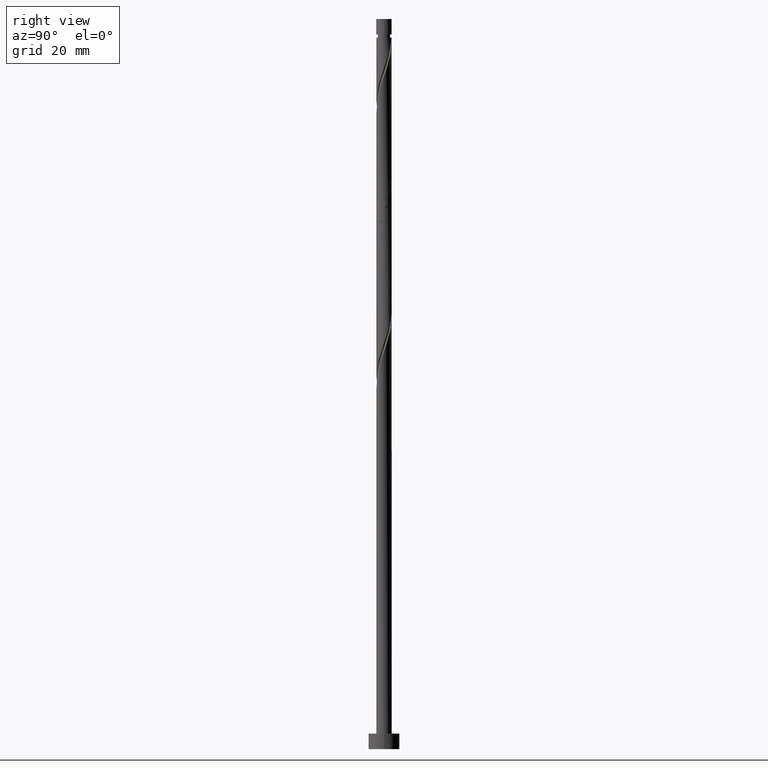
[diagram: clean part render]
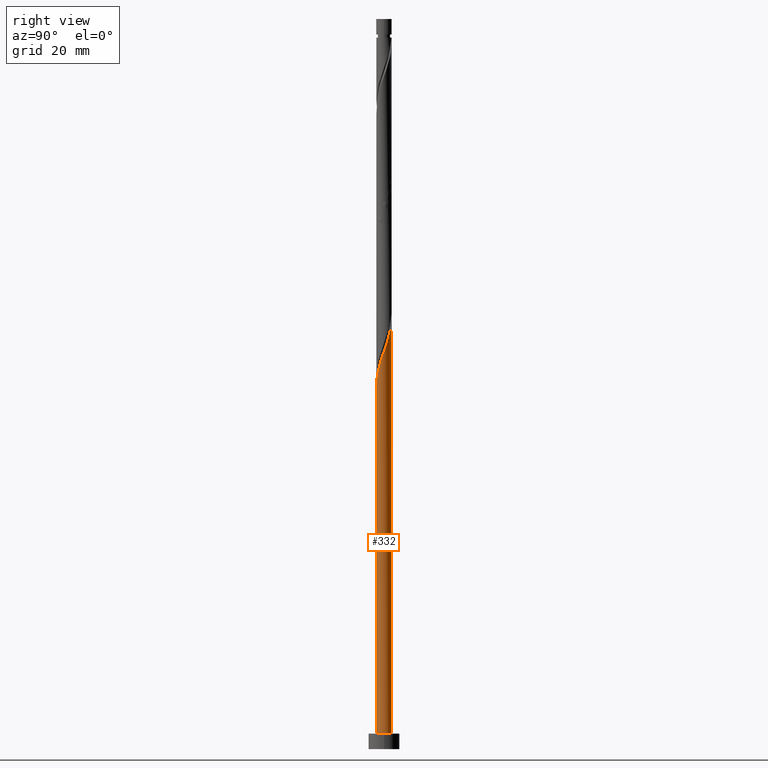
[diagram: same view with one face highlighted and labeled with its STEP entity id]
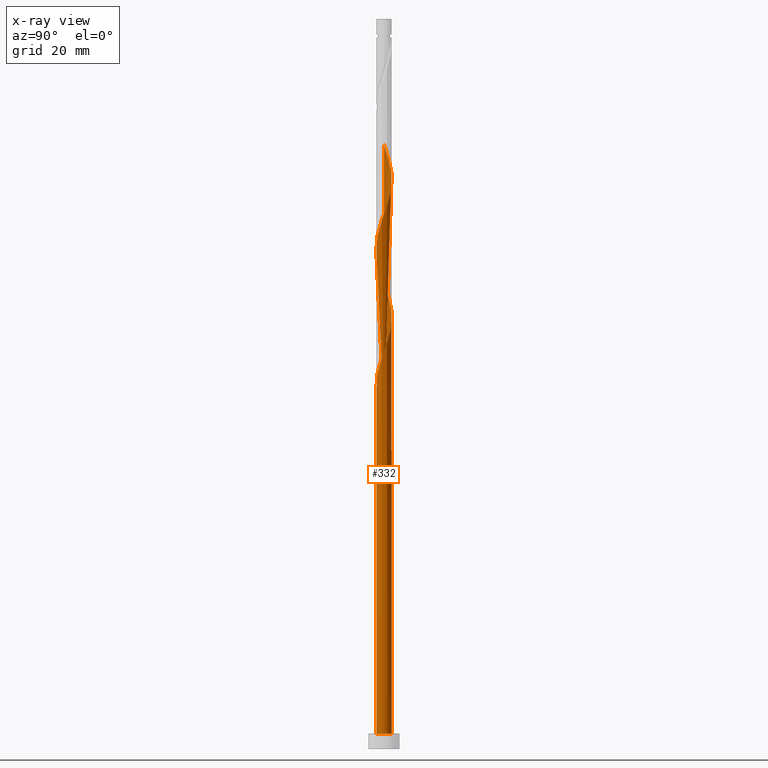
[diagram: x-ray of the same camera — body ghosted, the highlighted face saturated]
A machine part, right view. The second image highlights one B-rep face of the part: STEP entity #332.
The next image is the same camera in x-ray: the body ghosted, the highlighted face saturated — about 0% of this face is hidden behind the body in this view.
In plain terms, the highlighted cylindrical surface (bore or boss wall) has radius 1.5 mm, axis along (-0, -0, -1).
Its self-contained STEP definition (entity closure, byte-faithful):
#4 = EDGE_CURVE ( 'NONE', #1339, #1224, #66, .T. ) ;
#11 = DIRECTION ( 'NONE',  ( 0.000000000000000000, 0.000000000000000000, 1.000000000000000000 ) ) ;
#26 = CARTESIAN_POINT ( 'NONE',  ( 1.200452554620305756, -0.9248924852164317478, 74.17405152905163845 ) ) ;
#28 = VERTEX_POINT ( 'NONE', #1319 ) ;
#33 = ORIENTED_EDGE ( 'NONE', *, *, #1199, .F. ) ;
#36 = CARTESIAN_POINT ( 'NONE',  ( -0.1277418221353521788, -1.494550777617657866, 96.59829395329398949 ) ) ;
#58 = CARTESIAN_POINT ( 'NONE',  ( -0.08714213895937521215, 1.512917278876089178, 110.5376878926879840 ) ) ;
#62 = DIRECTION ( 'NONE',  ( 0.000000000000000000, -0.000000000000000000, -1.000000000000000000 ) ) ;
#63 = CARTESIAN_POINT ( 'NONE',  ( 1.412398115979206725, -0.5492212733340114950, 102.0528394078394854 ) ) ;
#66 = CIRCLE ( 'NONE', #115, 1.500000000000000222 ) ;
#77 = CARTESIAN_POINT ( 'NONE',  ( -1.412557076706237646, 0.5046607821568160901, 63.87102122602127707 ) ) ;
#84 = CARTESIAN_POINT ( 'NONE',  ( 0.1277418221353523453, 1.494550777617657866, 109.9316272866273039 ) ) ;
#91 = CARTESIAN_POINT ( 'NONE',  ( 1.497517962423706939, 0.08625515763335746267, 103.8710212260212842 ) ) ;
#93 = ORIENTED_EDGE ( 'NONE', *, *, #837, .T. ) ;
#95 = LINE ( 'NONE', #217, #1092 ) ;
#103 = CARTESIAN_POINT ( 'NONE',  ( -0.5436309926831534023, -1.398021939668450342, 95.38617274117278555 ) ) ;
#115 = AXIS2_PLACEMENT_3D ( 'NONE', #281, #11, #488 ) ;
#125 = CARTESIAN_POINT ( 'NONE',  ( -1.412557076706239423, -0.5046607821568164232, 91.74980910480913110 ) ) ;
#147 = EDGE_CURVE ( 'NONE', #28, #372, #844, .T. ) ;
#162 = EDGE_LOOP ( 'NONE', ( #33, #1200, #93, #785, #384, #1387, #276, #170, #1325 ) ) ;
#170 = ORIENTED_EDGE ( 'NONE', *, *, #510, .T. ) ;
#175 = CARTESIAN_POINT ( 'NONE',  ( -0.3426257832300798056, -1.476184276359228553, 95.99223334723343726 ) ) ;
#179 = CARTESIAN_POINT ( 'NONE',  ( -0.8912534666523074245, 1.225634408494021166, 112.9619303169304203 ) ) ;
#181 = CARTESIAN_POINT ( 'NONE',  ( -0.5098503233045978966, 1.427082721123916542, 85.08314243814253075 ) ) ;
#183 = CARTESIAN_POINT ( 'NONE',  ( -1.500000000000002665, 1.002106987134251127E-15, 116.9609606861143618 ) ) ;
#188 = CARTESIAN_POINT ( 'NONE',  ( -0.8912534666523074245, 1.225634408494021166, 86.29526365026373469 ) ) ;
#198 = CARTESIAN_POINT ( 'NONE',  ( -1.461158848907852192, 0.3391383467823815834, 89.32556668056673743 ) ) ;
#200 = CARTESIAN_POINT ( 'NONE',  ( -1.086320624467308482, -1.056607754070166605, 66.90132425632431534 ) ) ;
#209 = CARTESIAN_POINT ( 'NONE',  ( 1.500000000000000222, 0.000000000000000000, 3.000000000000000000 ) ) ;
#212 = CARTESIAN_POINT ( 'NONE',  ( -1.500000000000000222, 0.04316328978573460290, 65.20443830666455653 ) ) ;
#216 = CARTESIAN_POINT ( 'NONE',  ( 0.5098503233045974525, -1.427082721123916764, 71.74980910480915952 ) ) ;
#217 = CARTESIAN_POINT ( 'NONE',  ( -1.500000000000000222, 0.000000000000000000, 141.4300000000000068 ) ) ;
#225 = CARTESIAN_POINT ( 'NONE',  ( -0.7446362021362270545, -1.319859602977673241, 94.78011213511219069 ) ) ;
#242 = CARTESIAN_POINT ( 'NONE',  ( -1.200452554620305978, 0.9248924852164315258, 60.84071819571826722 ) ) ;
#243 = CARTESIAN_POINT ( 'NONE',  ( 0.000000000000000000, 0.000000000000000000, 3.000000000000000000 ) ) ;
#256 = CARTESIAN_POINT ( 'NONE',  ( -0.5098503233045978966, 1.427082721123916542, 58.41647577147585935 ) ) ;
#271 = CARTESIAN_POINT ( 'NONE',  ( 1.412557076706239423, 0.5046607821568162011, 78.41647577147580250 ) ) ;
#276 = ORIENTED_EDGE ( 'NONE', *, *, #147, .F. ) ;
#281 = CARTESIAN_POINT ( 'NONE',  ( 0.000000000000000000, 0.000000000000000000, 3.000000000000000000 ) ) ;
#297 = CARTESIAN_POINT ( 'NONE',  ( 1.086320624467309148, 1.056607754070166383, 106.9013242563243296 ) ) ;
#306 = CARTESIAN_POINT ( 'NONE',  ( -1.213159217434434112, 0.8821817914431654417, 62.65890001390006603 ) ) ;
#308 = CARTESIAN_POINT ( 'NONE',  ( -0.7005518949784522720, 1.326358564808968188, 85.68920304420309719 ) ) ;
#327 = CARTESIAN_POINT ( 'NONE',  ( 0.5436309926831528472, 1.398021939668450342, 108.7195060745060999 ) ) ;
#332 = ADVANCED_FACE ( 'NONE', ( #379 ), #738, .T. ) ;
#338 = CARTESIAN_POINT ( 'NONE',  ( -1.339997810401564182, -0.7077558288161663880, 65.68920304420311140 ) ) ;
#366 = CIRCLE ( 'NONE', #1018, 1.500000000000000222 ) ;
#372 = VERTEX_POINT ( 'NONE', #1244 ) ;
#379 = FACE_OUTER_BOUND ( 'NONE', #162, .T. ) ;
#384 = ORIENTED_EDGE ( 'NONE', *, *, #4, .T. ) ;
#413 = CARTESIAN_POINT ( 'NONE',  ( -1.461158848907852192, 0.3391383467823815834, 115.9922333472333804 ) ) ;
#442 = CARTESIAN_POINT ( 'NONE',  ( -0.1277418221353521788, -1.494550777617657866, 69.93162728662731809 ) ) ;
#447 = CARTESIAN_POINT ( 'NONE',  ( 0.8912534666523075355, -1.225634408494020944, 99.62859698359707750 ) ) ;
#451 = CARTESIAN_POINT ( 'NONE',  ( -0.7446362021362270545, -1.319859602977673241, 68.11344546844554770 ) ) ;
#453 = CARTESIAN_POINT ( 'NONE',  ( -1.306425335299755464, 0.7370568792752212328, 61.44677880177885498 ) ) ;
#460 = CARTESIAN_POINT ( 'NONE',  ( 0.5098503233045974525, -1.427082721123916764, 98.41647577147583092 ) ) ;
#461 = CARTESIAN_POINT ( 'NONE',  ( -1.213159217434436110, -0.8821817914431664409, 66.29526365026370627 ) ) ;
#463 = CARTESIAN_POINT ( 'NONE',  ( -1.500000000000001998, 0.1717933910776864304, 63.14166739980971244 ) ) ;
#478 = CARTESIAN_POINT ( 'NONE',  ( 0.7446362021362264993, 1.319859602977673241, 81.44677880177887630 ) ) ;
#488 = DIRECTION ( 'NONE',  ( 1.000000000000000000, 0.000000000000000000, 0.000000000000000000 ) ) ;
#495 = VECTOR ( 'NONE', #562, 1000.000000000000000 ) ;
#502 = CARTESIAN_POINT ( 'NONE',  ( 1.461158848907852637, -0.3391383467823813613, 75.99223334723338041 ) ) ;
#510 = EDGE_CURVE ( 'NONE', #28, #985, #366, .T. ) ;
#515 = CARTESIAN_POINT ( 'NONE',  ( 0.08714213895937543419, -1.512917278876089178, 97.20435455935464120 ) ) ;
#536 = CARTESIAN_POINT ( 'NONE',  ( -1.306425335299755464, 0.7370568792752212328, 114.7801121351122049 ) ) ;
#541 = DIRECTION ( 'NONE',  ( -1.000000000000000000, 0.000000000000000000, 0.000000000000000000 ) ) ;
#554 = CARTESIAN_POINT ( 'NONE',  ( -1.500000000000003331, 0.1717933910776816009, 116.4750007331430481 ) ) ;
#562 = DIRECTION ( 'NONE',  ( -0.000000000000000000, -0.000000000000000000, -1.000000000000000000 ) ) ;
#566 = CARTESIAN_POINT ( 'NONE',  ( 1.045853010636305980, -1.075263446855226235, 73.56799092299097254 ) ) ;
#571 = CARTESIAN_POINT ( 'NONE',  ( 1.509919581836498992, -0.1290554202307516996, 103.2649606199607035 ) ) ;
#579 = CARTESIAN_POINT ( 'NONE',  ( -1.086320624467308482, -1.056607754070166605, 93.56799092299097254 ) ) ;
#585 = CARTESIAN_POINT ( 'NONE',  ( 1.306425335299755019, -0.7370568792752216769, 101.4467788017788337 ) ) ;
#596 = DIRECTION ( 'NONE',  ( 0.000000000000000000, 0.000000000000000000, 1.000000000000000000 ) ) ;
#602 = CARTESIAN_POINT ( 'NONE',  ( -0.9154784133017673797, -1.188233678523919368, 94.17405152905155319 ) ) ;
#606 = DIRECTION ( 'NONE',  ( -1.000000000000000000, 0.000000000000000000, 0.000000000000000000 ) ) ;
#610 = CARTESIAN_POINT ( 'NONE',  ( 1.412398115979206725, -0.5492212733340114950, 75.38617274117281397 ) ) ;
#624 = AXIS2_PLACEMENT_3D ( 'NONE', #243, #596, #715 ) ;
#656 = CARTESIAN_POINT ( 'NONE',  ( -1.485116343010912665, 0.3015657354974666249, 64.47708183208187904 ) ) ;
#671 = LINE ( 'NONE', #1262, #495 ) ;
#675 = CARTESIAN_POINT ( 'NONE',  ( -1.485116343010916440, -0.3015657354974666249, 64.47708183208190746 ) ) ;
#676 =( BOUNDED_CURVE ( )  B_SPLINE_CURVE ( 2, ( #1027, #212, #784, #656, #77, #1014, #306, #777, #1499, #1486, #1124, #1246, #897, #1376, #1143 ),
 .UNSPECIFIED., .F., .T. ) 
 B_SPLINE_CURVE_WITH_KNOTS ( ( 3, 2, 2, 2, 2, 2, 2, 3 ),
 ( 0.9295252162417513286, 0.9318181818181817677, 0.9431818181818182323, 0.9545454545454545858, 0.9659090909090909394, 0.9772727272727272929, 0.9886363636363636465, 1.000000000000000000 ),
 .UNSPECIFIED. ) 
 CURVE ( )  GEOMETRIC_REPRESENTATION_ITEM ( )  RATIONAL_B_SPLINE_CURVE ( ( 0.9061101570135623451, 0.9072237824201444534, 0.9090909090909219392, 0.8998376744372241776, 0.9090909090909219392, 0.8998376744372241776, 0.9090909090909219392, 0.8998376744372241776, 0.9090909090909219392, 0.8998376744372241776, 0.9090909090909219392, 0.8998376744372241776, 0.9090909090909219392, 0.8998376744372241776, 0.9090909090909219392 ) ) 
 REPRESENTATION_ITEM ( '' )  );
#688 = CARTESIAN_POINT ( 'NONE',  ( 0.3426257832300799722, 1.476184276359228331, 109.3255666805667659 ) ) ;
#706 = EDGE_CURVE ( 'NONE', #372, #1086, #1421, .T. ) ;
#708 = CARTESIAN_POINT ( 'NONE',  ( -1.412398115979206503, 0.5492212733340117170, 62.05283940783948538 ) ) ;
#714 = CARTESIAN_POINT ( 'NONE',  ( -1.500000000000002220, -1.099326321706976600E-15, 63.62762735278099058 ) ) ;
#715 = DIRECTION ( 'NONE',  ( 1.000000000000000000, 0.000000000000000000, 0.000000000000000000 ) ) ;
#724 = EDGE_CURVE ( 'NONE', #923, #985, #676, .T. ) ;
#726 = CARTESIAN_POINT ( 'NONE',  ( 1.213159217434436332, 0.8821817914431659968, 79.62859698359704907 ) ) ;
#738 = CYLINDRICAL_SURFACE ( 'NONE', #820, 1.500000000000000222 ) ;
#748 = CARTESIAN_POINT ( 'NONE',  ( 1.339997810401564182, 0.7077558288161660549, 79.02253637753646842 ) ) ;
#770 = CARTESIAN_POINT ( 'NONE',  ( 1.213159217434436332, 0.8821817914431659968, 106.2952636502636921 ) ) ;
#771 = CARTESIAN_POINT ( 'NONE',  ( -0.08714213895937521215, 1.512917278876089178, 83.87102122602131260 ) ) ;
#773 = CARTESIAN_POINT ( 'NONE',  ( 0.2984962311319862560, -1.470000000000002638, 97.81041516541520764 ) ) ;
#777 = CARTESIAN_POINT ( 'NONE',  ( -1.086320624467306262, 1.056607754070165273, 62.05283940783946406 ) ) ;
#784 = CARTESIAN_POINT ( 'NONE',  ( -1.497517962423705384, 0.08625515763335793451, 65.08314243814250233 ) ) ;
#785 = ORIENTED_EDGE ( 'NONE', *, *, #1498, .T. ) ;
#797 = CARTESIAN_POINT ( 'NONE',  ( 0.7005518949784519389, -1.326358564808968410, 72.35586971086976860 ) ) ;
#803 = CARTESIAN_POINT ( 'NONE',  ( -0.7005518949784522720, 1.326358564808968188, 112.3558697108697544 ) ) ;
#805 = CARTESIAN_POINT ( 'NONE',  ( -1.509919581836498992, 0.1290554202307517551, 89.93162728662737493 ) ) ;
#807 = DIRECTION ( 'NONE',  ( -0.000000000000000000, -0.000000000000000000, -1.000000000000000000 ) ) ;
#820 = AXIS2_PLACEMENT_3D ( 'NONE', #839, #831, #606 ) ;
#823 = CARTESIAN_POINT ( 'NONE',  ( -0.3426257832300798056, -1.476184276359228553, 69.32556668056675164 ) ) ;
#829 = CARTESIAN_POINT ( 'NONE',  ( -1.485116343010916440, -0.3015657354974666249, 91.14374849874856466 ) ) ;
#831 = DIRECTION ( 'NONE',  ( -0.000000000000000000, -0.000000000000000000, -1.000000000000000000 ) ) ;
#837 = EDGE_CURVE ( 'NONE', #372, #1224, #671, .T. ) ;
#839 = CARTESIAN_POINT ( 'NONE',  ( 0.000000000000000000, 0.000000000000000000, 141.4300000000000068 ) ) ;
#844 =( BOUNDED_CURVE ( )  B_SPLINE_CURVE ( 2, ( #1156, #256, #1194, #1296, #1048, #242, #453, #708, #1165, #463, #714 ),
 .UNSPECIFIED., .F., .T. ) 
 B_SPLINE_CURVE_WITH_KNOTS ( ( 3, 2, 2, 2, 2, 3 ),
 ( 0.000000000000000000, 0.01136363636363635354, 0.02272727272727270709, 0.03409090909090906063, 0.04545454545454541417, 0.05452521624175121068 ),
 .UNSPECIFIED. ) 
 CURVE ( )  GEOMETRIC_REPRESENTATION_ITEM ( )  RATIONAL_B_SPLINE_CURVE ( ( 0.9090909090909280454, 0.8998376744372300617, 0.9090909090909280454, 0.8998376744372300617, 0.9090909090909280454, 0.8998376744372300617, 0.9090909090909280454, 0.8998376744372300617, 0.9090909090909280454, 0.9017048011080076586, 0.9061101570135682293 ) ) 
 REPRESENTATION_ITEM ( '' )  );
#864 = CARTESIAN_POINT ( 'NONE',  ( -1.497517962423706939, -0.08625515763335761532, 63.87102122602126997 ) ) ;
#887 = CARTESIAN_POINT ( 'NONE',  ( -1.500000000000002220, -1.099326321706976600E-15, 63.62762735278099058 ) ) ;
#889 = CARTESIAN_POINT ( 'NONE',  ( -0.5098503233045978966, 1.427082721123916542, 111.7498091048091879 ) ) ;
#897 = CARTESIAN_POINT ( 'NONE',  ( -0.1277418221353517902, 1.494550777617656534, 59.02253637753644711 ) ) ;
#900 = CARTESIAN_POINT ( 'NONE',  ( -1.500000000000000444, 1.510638891053134665E-15, 65.32653631138276751 ) ) ;
#905 = CARTESIAN_POINT ( 'NONE',  ( -1.200452554620305978, 0.9248924852164315258, 87.50738486238493863 ) ) ;
#915 = CARTESIAN_POINT ( 'NONE',  ( 0.7005518949784519389, -1.326358564808968410, 99.02253637753642579 ) ) ;
#916 = CARTESIAN_POINT ( 'NONE',  ( 0.2984962311319862560, -1.470000000000002638, 71.14374849874856466 ) ) ;
#921 = CARTESIAN_POINT ( 'NONE',  ( 1.339997810401564182, 0.7077558288161660549, 105.6892030442031256 ) ) ;
#923 = VERTEX_POINT ( 'NONE', #900 ) ;
#929 = CARTESIAN_POINT ( 'NONE',  ( 1.045853010636305980, -1.075263446855226235, 100.2346575896576581 ) ) ;
#941 = CARTESIAN_POINT ( 'NONE',  ( -0.9154784133017673797, -1.188233678523919368, 67.50738486238491021 ) ) ;
#964 = CARTESIAN_POINT ( 'NONE',  ( 1.509919581836498992, -0.1290554202307516996, 76.59829395329403212 ) ) ;
#985 = VERTEX_POINT ( 'NONE', #1242 ) ;
#1014 = CARTESIAN_POINT ( 'NONE',  ( -1.339997810401561740, 0.7077558288161657218, 63.26496061996067510 ) ) ;
#1018 = AXIS2_PLACEMENT_3D ( 'NONE', #1482, #62, #541 ) ;
#1022 = CARTESIAN_POINT ( 'NONE',  ( -1.045853010636305980, 1.075263446855226235, 86.90132425632432955 ) ) ;
#1027 = CARTESIAN_POINT ( 'NONE',  ( -1.500000000000000444, 1.510638891053134665E-15, 65.32653631138276751 ) ) ;
#1030 = CARTESIAN_POINT ( 'NONE',  ( 0.08714213895937543419, -1.512917278876089178, 70.53768789268796979 ) ) ;
#1034 = CARTESIAN_POINT ( 'NONE',  ( 0.9154784133017670467, 1.188233678523919590, 107.5073848623848676 ) ) ;
#1042 = CARTESIAN_POINT ( 'NONE',  ( 0.7446362021362264993, 1.319859602977673241, 108.1134454684455619 ) ) ;
#1046 = CARTESIAN_POINT ( 'NONE',  ( 0.8912534666523075355, -1.225634408494020944, 72.96193031693039188 ) ) ;
#1048 = CARTESIAN_POINT ( 'NONE',  ( -1.045853010636305980, 1.075263446855226235, 60.23465758965762973 ) ) ;
#1052 = CARTESIAN_POINT ( 'NONE',  ( 1.200452554620305756, -0.9248924852164317478, 100.8407181957182672 ) ) ;
#1070 = CARTESIAN_POINT ( 'NONE',  ( -1.339997810401564182, -0.7077558288161663880, 92.35586971086978281 ) ) ;
#1075 = CARTESIAN_POINT ( 'NONE',  ( 1.086320624467309148, 1.056607754070166383, 80.23465758965765815 ) ) ;
#1081 = CARTESIAN_POINT ( 'NONE',  ( 0.9154784133017670467, 1.188233678523919590, 80.84071819571822459 ) ) ;
#1086 = VERTEX_POINT ( 'NONE', #183 ) ;
#1092 = VECTOR ( 'NONE', #807, 1000.000000000000000 ) ;
#1124 = CARTESIAN_POINT ( 'NONE',  ( -0.5436309926831524031, 1.398021939668448788, 60.23465758965765104 ) ) ;
#1143 = CARTESIAN_POINT ( 'NONE',  ( 0.2984962311319867001, 1.469999999999999751, 57.81041516541522896 ) ) ;
#1146 = CARTESIAN_POINT ( 'NONE',  ( -1.500000000000000222, 0.000000000000000000, 3.000000000000000000 ) ) ;
#1150 = CARTESIAN_POINT ( 'NONE',  ( 1.485116343010916440, 0.3015657354974664583, 104.4770818320819359 ) ) ;
#1156 = CARTESIAN_POINT ( 'NONE',  ( -0.2984962311319862005, 1.470000000000002638, 57.81041516541522185 ) ) ;
#1163 = CARTESIAN_POINT ( 'NONE',  ( -1.412557076706239423, -0.5046607821568164232, 65.08314243814250233 ) ) ;
#1165 = CARTESIAN_POINT ( 'NONE',  ( -1.461158848907852192, 0.3391383467823815834, 62.65890001390006603 ) ) ;
#1184 = CARTESIAN_POINT ( 'NONE',  ( -1.497517962423706939, -0.08625515763335761532, 90.53768789268794137 ) ) ;
#1194 = CARTESIAN_POINT ( 'NONE',  ( -0.7005518949784522720, 1.326358564808968188, 59.02253637753643289 ) ) ;
#1199 = EDGE_CURVE ( 'NONE', #1086, #923, #95, .T. ) ;
#1200 = ORIENTED_EDGE ( 'NONE', *, *, #706, .F. ) ;
#1206 = CARTESIAN_POINT ( 'NONE',  ( 1.306425335299755019, -0.7370568792752216769, 74.78011213511217647 ) ) ;
#1224 = VERTEX_POINT ( 'NONE', #1146 ) ;
#1239 = CARTESIAN_POINT ( 'NONE',  ( -1.500000000000002665, 1.002106987134251127E-15, 116.9609606861143618 ) ) ;
#1240 = CARTESIAN_POINT ( 'NONE',  ( -0.2984962311319860895, 1.470000000000002638, 84.47708183208187904 ) ) ;
#1242 = CARTESIAN_POINT ( 'NONE',  ( 0.2984962311319867001, 1.469999999999999751, 57.81041516541522896 ) ) ;
#1244 = CARTESIAN_POINT ( 'NONE',  ( -1.500000000000002220, -1.099326321706976600E-15, 63.62762735278099058 ) ) ;
#1246 = CARTESIAN_POINT ( 'NONE',  ( -0.3426257832300790840, 1.476184276359226111, 59.62859698359703486 ) ) ;
#1253 = CARTESIAN_POINT ( 'NONE',  ( 1.412557076706239423, 0.5046607821568162011, 105.0831424381424597 ) ) ;
#1254 = CARTESIAN_POINT ( 'NONE',  ( -1.412398115979206503, 0.5492212733340117170, 88.71950607450614257 ) ) ;
#1262 = CARTESIAN_POINT ( 'NONE',  ( -1.500000000000000222, 0.000000000000000000, 141.4300000000000068 ) ) ;
#1270 = CARTESIAN_POINT ( 'NONE',  ( -1.200452554620305978, 0.9248924852164315258, 114.1740515290516242 ) ) ;
#1296 = CARTESIAN_POINT ( 'NONE',  ( -0.8912534666523074245, 1.225634408494021166, 59.62859698359704197 ) ) ;
#1306 = CARTESIAN_POINT ( 'NONE',  ( 0.3426257832300799722, 1.476184276359228331, 82.65890001390012287 ) ) ;
#1316 = CARTESIAN_POINT ( 'NONE',  ( 1.497517962423706939, 0.08625515763335746267, 77.20435455935461277 ) ) ;
#1319 = CARTESIAN_POINT ( 'NONE',  ( -0.2984962311319862005, 1.470000000000002638, 57.81041516541522896 ) ) ;
#1325 = ORIENTED_EDGE ( 'NONE', *, *, #724, .F. ) ;
#1332 = CARTESIAN_POINT ( 'NONE',  ( 1.485116343010916440, 0.3015657354974664583, 77.81041516541526448 ) ) ;
#1339 = VERTEX_POINT ( 'NONE', #209 ) ;
#1357 = CARTESIAN_POINT ( 'NONE',  ( 1.461158848907852637, -0.3391383467823813613, 102.6589000139000518 ) ) ;
#1367 = CARTESIAN_POINT ( 'NONE',  ( -1.045853010636305980, 1.075263446855226235, 113.5679909229909725 ) ) ;
#1376 = CARTESIAN_POINT ( 'NONE',  ( 0.08714213895937553134, 1.512917278876086513, 58.41647577147583803 ) ) ;
#1377 = CARTESIAN_POINT ( 'NONE',  ( -1.306425335299755464, 0.7370568792752212328, 88.11344546844551928 ) ) ;
#1379 = CARTESIAN_POINT ( 'NONE',  ( -0.5436309926831534023, -1.398021939668450342, 68.71950607450612836 ) ) ;
#1385 = CARTESIAN_POINT ( 'NONE',  ( -0.2984962311319860895, 1.470000000000002638, 111.1437484987485220 ) ) ;
#1387 = ORIENTED_EDGE ( 'NONE', *, *, #837, .F. ) ;
#1421 =( BOUNDED_CURVE ( )  B_SPLINE_CURVE ( 2, ( #887, #1456, #864, #675, #1163, #338, #461, #200, #941, #451, #1379, #823, #442, #1030, #916, #216, #797, #1046, #566, #26, #1206, #610, #502, #964, #1316, #1332, #271, #748, #726, #1075, #1081, #478, #1439, #1306, #1487, #771, #1240, #181, #308, #188, #1022, #905, #1377, #1254, #198, #805, #1184, #829, #125, #1070, #1541, #579, #602, #225, #103, #175, #36, #515, #773, #460, #915, #447, #929, #1052, #585, #63, #1357, #571, #91, #1150, #1253, #921, #770, #297, #1034, #1042, #327, #688, #84, #58, #1385, #889, #803, #179, #1367, #1270, #536, #1513, #413, #554, #1239 ),
 .UNSPECIFIED., .F., .T. ) 
 B_SPLINE_CURVE_WITH_KNOTS ( ( 3, 2, 2, 2, 2, 2, 2, 2, 2, 2, 2, 2, 2, 2, 2, 2, 2, 2, 2, 2, 2, 2, 2, 2, 2, 2, 2, 2, 2, 2, 2, 2, 2, 2, 2, 2, 2, 2, 2, 2, 2, 2, 2, 2, 2, 3 ),
 ( 0.05452521624175120374, 0.05681818181818176772, 0.06818181818181823228, 0.07954545454545458583, 0.09090909090909093937, 0.1022727272727272929, 0.1136363636363636465, 0.1250000000000000000, 0.1363636363636363535, 0.1477272727272727071, 0.1590909090909090606, 0.1704545454545454142, 0.1818181818181817677, 0.1931818181818182323, 0.2045454545454545858, 0.2159090909090909394, 0.2272727272727272929, 0.2386363636363636465, 0.2500000000000000000, 0.2613636363636363535, 0.2727272727272727071, 0.2840909090909090606, 0.2954545454545454142, 0.3068181818181817677, 0.3181818181818182323, 0.3295454545454545858, 0.3409090909090909394, 0.3522727272727272929, 0.3636363636363636465, 0.3750000000000000000, 0.3863636363636363535, 0.3977272727272727071, 0.4090909090909090606, 0.4204545454545454142, 0.4318181818181817677, 0.4431818181818182323, 0.4545454545454545858, 0.4659090909090909394, 0.4772727272727272929, 0.4886363636363636465, 0.5000000000000000000, 0.5113636363636363535, 0.5227272727272727071, 0.5340909090909091717, 0.5454545454545454142, 0.5545252162417515507 ),
 .UNSPECIFIED. ) 
 CURVE ( )  GEOMETRIC_REPRESENTATION_ITEM ( )  RATIONAL_B_SPLINE_CURVE ( ( 0.9061101570135682293, 0.9072237824201504486, 0.9090909090909280454, 0.8998376744372300617, 0.9090909090909280454, 0.8998376744372300617, 0.9090909090909280454, 0.8998376744372300617, 0.9090909090909280454, 0.8998376744372300617, 0.9090909090909280454, 0.8998376744372300617, 0.9090909090909280454, 0.8998376744372300617, 0.9090909090909280454, 0.8998376744372300617, 0.9090909090909280454, 0.8998376744372300617, 0.9090909090909280454, 0.8998376744372300617, 0.9090909090909280454, 0.8998376744372300617, 0.9090909090909280454, 0.8998376744372300617, 0.9090909090909280454, 0.8998376744372300617, 0.9090909090909280454, 0.8998376744372300617, 0.9090909090909280454, 0.8998376744372300617, 0.9090909090909280454, 0.8998376744372300617, 0.9090909090909280454, 0.8998376744372300617, 0.9090909090909280454, 0.8998376744372300617, 0.9090909090909280454, 0.8998376744372300617, 0.9090909090909280454, 0.8998376744372300617, 0.9090909090909280454, 0.8998376744372300617, 0.9090909090909280454, 0.8998376744372300617, 0.9090909090909280454, 0.8998376744372300617, 0.9090909090909280454, 0.8998376744372300617, 0.9090909090909280454, 0.8998376744372300617, 0.9090909090909280454, 0.8998376744372300617, 0.9090909090909280454, 0.8998376744372300617, 0.9090909090909280454, 0.8998376744372300617, 0.9090909090909280454, 0.8998376744372300617, 0.9090909090909280454, 0.8998376744372300617, 0.9090909090909280454, 0.8998376744372300617, 0.9090909090909280454, 0.8998376744372300617, 0.9090909090909280454, 0.8998376744372300617, 0.9090909090909280454, 0.8998376744372300617, 0.9090909090909280454, 0.8998376744372300617, 0.9090909090909280454, 0.8998376744372300617, 0.9090909090909280454, 0.8998376744372300617, 0.9090909090909280454, 0.8998376744372300617, 0.9090909090909280454, 0.8998376744372300617, 0.9090909090909280454, 0.8998376744372300617, 0.9090909090909280454, 0.8998376744372300617, 0.9090909090909280454, 0.8998376744372300617, 0.9090909090909280454, 0.8998376744372300617, 0.9090909090909280454, 0.8998376744372300617, 0.9090909090909280454, 0.9017048011080074366, 0.9061101570135683403 ) ) 
 REPRESENTATION_ITEM ( '' )  );
#1439 = CARTESIAN_POINT ( 'NONE',  ( 0.5436309926831528472, 1.398021939668450342, 82.05283940783944274 ) ) ;
#1456 = CARTESIAN_POINT ( 'NONE',  ( -1.500000000000002887, -0.04316328978573188979, 63.74972535749921576 ) ) ;
#1482 = CARTESIAN_POINT ( 'NONE',  ( 0.000000000000000000, 0.000000000000000000, 57.81041516541522896 ) ) ;
#1486 = CARTESIAN_POINT ( 'NONE',  ( -0.7446362021362256112, 1.319859602977670798, 60.84071819571826012 ) ) ;
#1487 = CARTESIAN_POINT ( 'NONE',  ( 0.1277418221353523453, 1.494550777617657866, 83.26496061996067510 ) ) ;
#1498 = EDGE_CURVE ( 'NONE', #1224, #1339, #1538, .T. ) ;
#1499 = CARTESIAN_POINT ( 'NONE',  ( -0.9154784133017659364, 1.188233678523918035, 61.44677880177886209 ) ) ;
#1513 = CARTESIAN_POINT ( 'NONE',  ( -1.412398115979206503, 0.5492212733340117170, 115.3861727411728140 ) ) ;
#1538 = CIRCLE ( 'NONE', #624, 1.500000000000000222 ) ;
#1541 = CARTESIAN_POINT ( 'NONE',  ( -1.213159217434436110, -0.8821817914431664409, 92.96193031693037767 ) ) ;